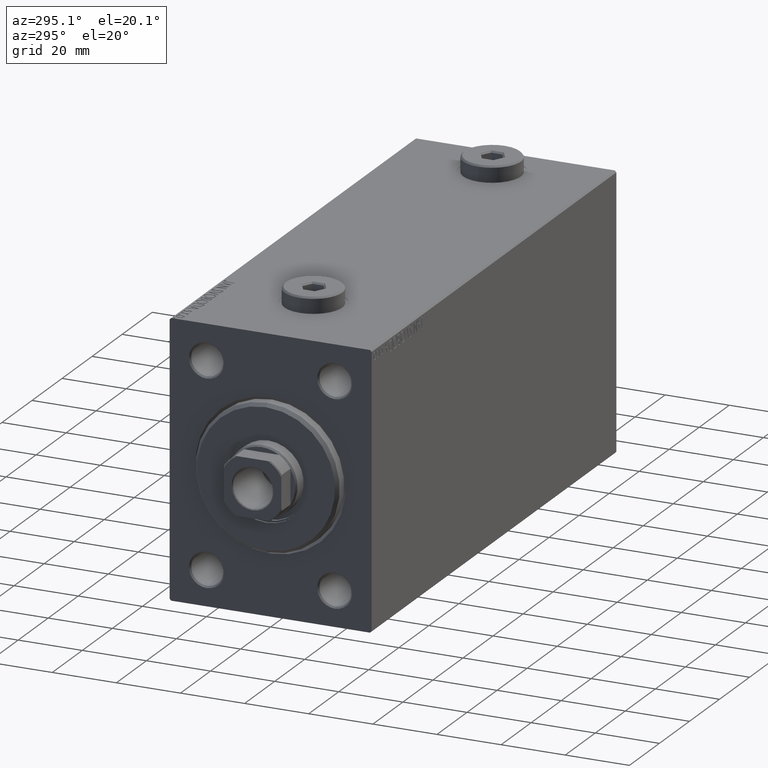
[diagram: clean part render]
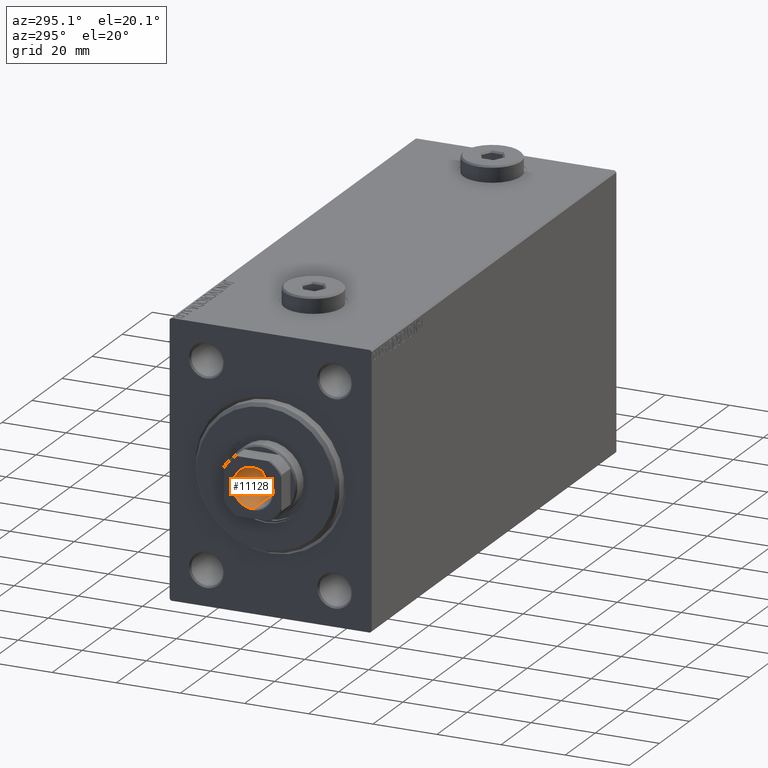
[diagram: same view with one face highlighted and labeled with its STEP entity id]
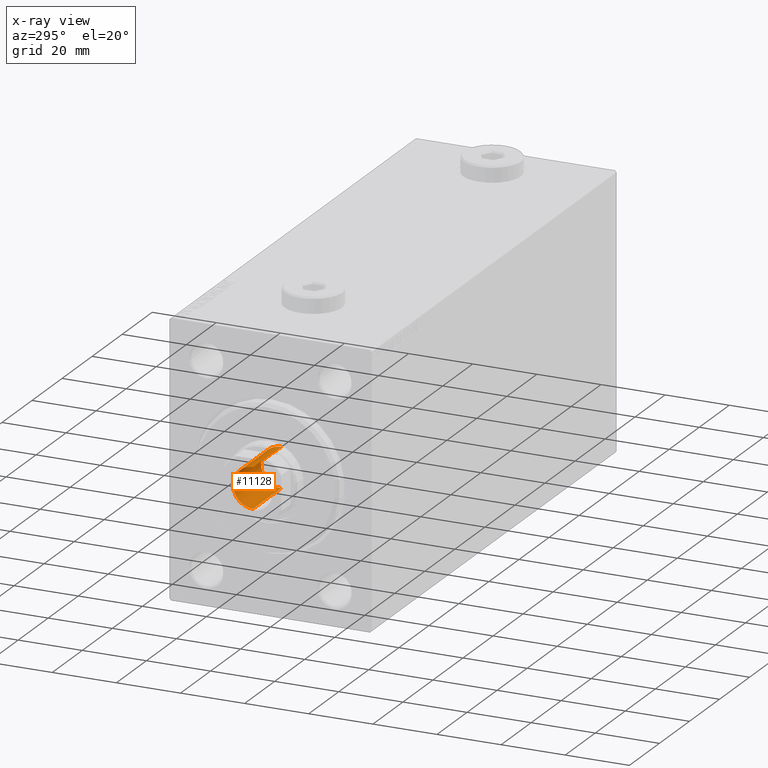
[diagram: x-ray of the same camera — body ghosted, the highlighted face saturated]
A machine part, auxiliary view. The second image highlights one B-rep face of the part: STEP entity #11128.
The next image is the same camera in x-ray: the body ghosted, the highlighted face saturated — about 0% of this face is hidden behind the body in this view.
In plain terms, the highlighted cylindrical surface (edge-blend (fillet) strip) has radius 6.25 mm, axis along (-1, 0, 0).
Its self-contained STEP definition (entity closure, byte-faithful):
#3327 = CARTESIAN_POINT ( 'NONE',  ( 0.000000000000000000, 0.000000000000000000, 144.0000000000000284 ) ) ;
#3653 = EDGE_CURVE ( 'NONE', #6922, #18633, #39476, .T. ) ;
#3784 = ORIENTED_EDGE ( 'NONE', *, *, #15365, .T. ) ;
#4442 = CIRCLE ( 'NONE', #30214, 6.249999999999996447 ) ;
#4475 = DIRECTION ( 'NONE',  ( 1.000000000000000000, 0.000000000000000000, 0.000000000000000000 ) ) ;
#6922 = VERTEX_POINT ( 'NONE', #24821 ) ;
#7895 = CARTESIAN_POINT ( 'NONE',  ( 6.249999999999996447, 0.000000000000000000, 163.0000000000000000 ) ) ;
#9137 = LINE ( 'NONE', #16285, #28621 ) ;
#9582 = DIRECTION ( 'NONE',  ( -0.000000000000000000, -0.000000000000000000, 1.000000000000000000 ) ) ;
#11128 = ADVANCED_FACE ( 'NONE', ( #22419 ), #12035, .F. ) ;
#11723 = EDGE_CURVE ( 'NONE', #16817, #36406, #9137, .T. ) ;
#11876 = ORIENTED_EDGE ( 'NONE', *, *, #3653, .T. ) ;
#12035 = CYLINDRICAL_SURFACE ( 'NONE', #40412, 6.249999999999996447 ) ;
#13696 = CIRCLE ( 'NONE', #15156, 6.249999999999995559 ) ;
#14842 = CARTESIAN_POINT ( 'NONE',  ( 0.000000000000000000, 0.000000000000000000, 162.6999999999999602 ) ) ;
#15156 = AXIS2_PLACEMENT_3D ( 'NONE', #3327, #16701, #41818 ) ;
#15365 = EDGE_CURVE ( 'NONE', #18633, #36406, #4442, .T. ) ;
#16023 = CARTESIAN_POINT ( 'NONE',  ( 6.249999999999996447, 0.000000000000000000, 162.6999999999999602 ) ) ;
#16285 = CARTESIAN_POINT ( 'NONE',  ( -6.249999999999996447, 7.654042494670952676E-16, 163.0000000000000000 ) ) ;
#16701 = DIRECTION ( 'NONE',  ( -0.000000000000000000, -0.000000000000000000, 1.000000000000000000 ) ) ;
#16817 = VERTEX_POINT ( 'NONE', #36794 ) ;
#18633 = VERTEX_POINT ( 'NONE', #16023 ) ;
#18958 = VECTOR ( 'NONE', #21968, 1000.000000000000000 ) ;
#21156 = EDGE_CURVE ( 'NONE', #6922, #16817, #13696, .T. ) ;
#21968 = DIRECTION ( 'NONE',  ( -0.000000000000000000, -0.000000000000000000, 1.000000000000000000 ) ) ;
#22419 = FACE_OUTER_BOUND ( 'NONE', #44861, .T. ) ;
#22878 = CARTESIAN_POINT ( 'NONE',  ( 0.000000000000000000, 0.000000000000000000, 163.0000000000000000 ) ) ;
#24821 = CARTESIAN_POINT ( 'NONE',  ( 6.249999999999995559, 0.000000000000000000, 144.0000000000000284 ) ) ;
#26258 = ORIENTED_EDGE ( 'NONE', *, *, #21156, .F. ) ;
#28621 = VECTOR ( 'NONE', #9582, 1000.000000000000000 ) ;
#30214 = AXIS2_PLACEMENT_3D ( 'NONE', #14842, #33652, #4475 ) ;
#33013 = DIRECTION ( 'NONE',  ( -0.000000000000000000, -0.000000000000000000, 1.000000000000000000 ) ) ;
#33652 = DIRECTION ( 'NONE',  ( 0.000000000000000000, 0.000000000000000000, 1.000000000000000000 ) ) ;
#36406 = VERTEX_POINT ( 'NONE', #38788 ) ;
#36794 = CARTESIAN_POINT ( 'NONE',  ( -6.249999999999995559, 7.654042494670950704E-16, 144.0000000000000284 ) ) ;
#36924 = DIRECTION ( 'NONE',  ( 1.000000000000000000, 0.000000000000000000, 0.000000000000000000 ) ) ;
#38788 = CARTESIAN_POINT ( 'NONE',  ( -6.249999999999996447, 7.654042494670952676E-16, 162.6999999999999602 ) ) ;
#39476 = LINE ( 'NONE', #7895, #18958 ) ;
#40412 = AXIS2_PLACEMENT_3D ( 'NONE', #22878, #33013, #36924 ) ;
#41818 = DIRECTION ( 'NONE',  ( 1.000000000000000000, 0.000000000000000000, 0.000000000000000000 ) ) ;
#42292 = ORIENTED_EDGE ( 'NONE', *, *, #11723, .F. ) ;
#44861 = EDGE_LOOP ( 'NONE', ( #42292, #26258, #11876, #3784 ) ) ;